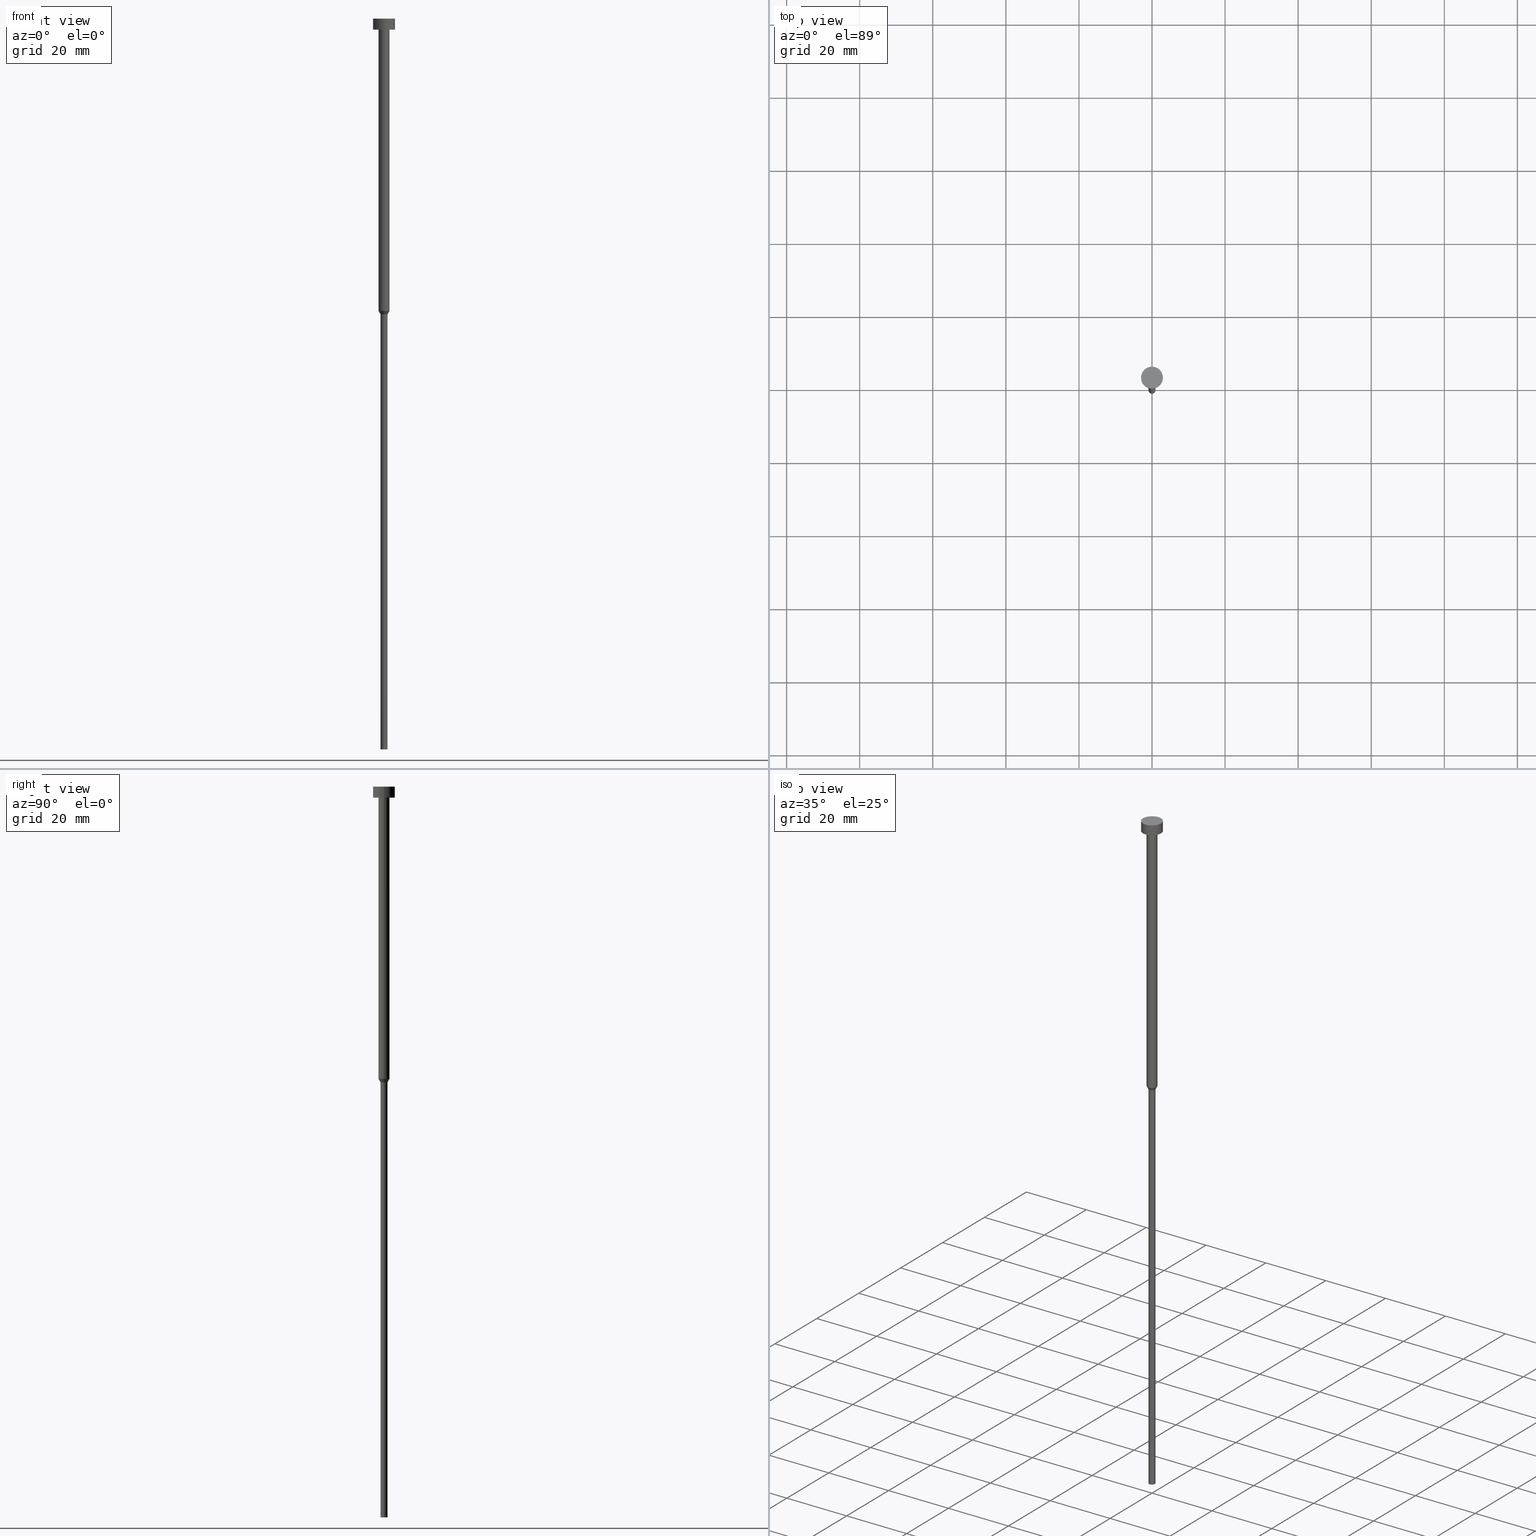
[diagram: canonical four-view strip — front | top / right | iso, engineering-drawing reading convention]
A machine part, canonical four-view strip (front | top / right | iso — engineering-drawing reading convention). The complete STEP part file that produces these views, byte-faithful:
ISO-10303-21;
HEADER;
FILE_DESCRIPTION (( 'STEP AP203' ),
    '1' );
FILE_NAME ('4db2.STEP',
    '2023-02-13T09:03:46',
    ( '' ),
    ( '' ),
    'SwSTEP 2.0',
    'SolidWorks 2019',
    '' );
FILE_SCHEMA (( 'CONFIG_CONTROL_DESIGN' ));
ENDSEC;

DATA;
#1 = EDGE_CURVE ( 'NONE', #82, #149, #207, .T. ) ;
#2 = DIRECTION ( 'NONE',  ( -0.000000000000000000, -0.000000000000000000, 1.000000000000000000 ) ) ;
#3 = VERTEX_POINT ( 'NONE', #14 ) ;
#4 = UNCERTAINTY_MEASURE_WITH_UNIT (LENGTH_MEASURE( 1.000000000000000082E-05 ), #194, 'distance_accuracy_value', 'NONE');
#5 = DIRECTION ( 'NONE',  ( -0.000000000000000000, -0.000000000000000000, 1.000000000000000000 ) ) ;
#6 = SECURITY_CLASSIFICATION ( '', '', #232 ) ;
#7 = ORIENTED_EDGE ( 'NONE', *, *, #49, .T. ) ;
#8 = CC_DESIGN_DATE_AND_TIME_ASSIGNMENT ( #201, #43, ( #6 ) ) ;
#9 = EDGE_LOOP ( 'NONE', ( #228, #233 ) ) ;
#10 = DIRECTION ( 'NONE',  ( -0.000000000000000000, -0.000000000000000000, 1.000000000000000000 ) ) ;
#11 = ORIENTED_EDGE ( 'NONE', *, *, #190, .T. ) ;
#12 = CARTESIAN_POINT ( 'NONE',  ( 0.000000000000000000, 0.000000000000000000, -200.0000000000000000 ) ) ;
#13 = EDGE_CURVE ( 'NONE', #196, #27, #108, .T. ) ;
#14 = CARTESIAN_POINT ( 'NONE',  ( -3.000000000000000000, 3.673940397442059868E-16, -3.673940397442059868E-16 ) ) ;
#15 = DATE_AND_TIME ( #182, #297 ) ;
#16 = CARTESIAN_POINT ( 'NONE',  ( 0.000000000000000000, 0.000000000000000000, -200.0000000000000000 ) ) ;
#17 = FACE_OUTER_BOUND ( 'NONE', #58, .T. ) ;
#18 = CALENDAR_DATE ( 2023, 13, 2 ) ;
#19 = ADVANCED_BREP_SHAPE_REPRESENTATION ( '4db2', ( #235, #314 ), #72 ) ;
#20 = CARTESIAN_POINT ( 'NONE',  ( -0.9500000000000001776, 1.163414459189985929E-16, -80.95262794416288443 ) ) ;
#21 = DIRECTION ( 'NONE',  ( -0.000000000000000000, -0.000000000000000000, 1.000000000000000000 ) ) ;
#22 = AXIS2_PLACEMENT_3D ( 'NONE', #256, #195, #249 ) ;
#23 = AXIS2_PLACEMENT_3D ( 'NONE', #110, #216, #54 ) ;
#24 = LINE ( 'NONE', #245, #55 ) ;
#25 = EDGE_CURVE ( 'NONE', #95, #85, #219, .T. ) ;
#26 = CYLINDRICAL_SURFACE ( 'NONE', #134, 3.000000000000000000 ) ;
#27 = VERTEX_POINT ( 'NONE', #278 ) ;
#28 = CYLINDRICAL_SURFACE ( 'NONE', #23, 1.500000000000000000 ) ;
#29 = AXIS2_PLACEMENT_3D ( 'NONE', #305, #223, #86 ) ;
#30 = EDGE_LOOP ( 'NONE', ( #151, #120, #11, #143 ) ) ;
#31 = PERSON_AND_ORGANIZATION ( #312, #176 ) ;
#32 = EDGE_LOOP ( 'NONE', ( #61, #7, #307, #313 ) ) ;
#33 = LINE ( 'NONE', #146, #265 ) ;
#34 = DIRECTION ( 'NONE',  ( -0.000000000000000000, -0.000000000000000000, 1.000000000000000000 ) ) ;
#35 = ORIENTED_EDGE ( 'NONE', *, *, #1, .F. ) ;
#36 = APPLICATION_CONTEXT ( 'configuration controlled 3d designs of mechanical parts and assemblies' ) ;
#37 = EDGE_LOOP ( 'NONE', ( #174, #277 ) ) ;
#38 = LOCAL_TIME ( 10, 3, 46.00000000000000000, #205 ) ;
#39 = EDGE_CURVE ( 'NONE', #149, #3, #33, .T. ) ;
#40 = ORIENTED_EDGE ( 'NONE', *, *, #25, .T. ) ;
#41 = CALENDAR_DATE ( 2023, 13, 2 ) ;
#42 = EDGE_CURVE ( 'NONE', #196, #355, #116, .T. ) ;
#43 = DATE_TIME_ROLE ( 'classification_date' ) ;
#44 = CARTESIAN_POINT ( 'NONE',  ( 3.000000000000000000, 0.000000000000000000, -3.000000000000000888 ) ) ;
#45 = FACE_BOUND ( 'NONE', #189, .T. ) ;
#46 = PERSON_AND_ORGANIZATION_ROLE ( 'design_supplier' ) ;
#47 = CARTESIAN_POINT ( 'NONE',  ( -0.9499999999999999556, 1.163414459189985682E-16, 0.000000000000000000 ) ) ;
#48 = AXIS2_PLACEMENT_3D ( 'NONE', #338, #118, #63 ) ;
#49 = EDGE_CURVE ( 'NONE', #149, #82, #200, .T. ) ;
#50 = LOCAL_TIME ( 10, 3, 46.00000000000000000, #103 ) ;
#51 = DIRECTION ( 'NONE',  ( 1.000000000000000000, 0.000000000000000000, 0.000000000000000000 ) ) ;
#52 = CARTESIAN_POINT ( 'NONE',  ( 0.000000000000000000, 0.000000000000000000, -1.836970198721029934E-16 ) ) ;
#53 = CC_DESIGN_PERSON_AND_ORGANIZATION_ASSIGNMENT ( #129, #210, ( #131 ) ) ;
#54 = DIRECTION ( 'NONE',  ( 1.000000000000000000, 0.000000000000000000, 0.000000000000000000 ) ) ;
#55 = VECTOR ( 'NONE', #218, 1000.000000000000000 ) ;
#56 = CARTESIAN_POINT ( 'NONE',  ( 0.000000000000000000, 0.000000000000000000, 0.000000000000000000 ) ) ;
#57 = ORIENTED_EDGE ( 'NONE', *, *, #323, .F. ) ;
#58 = EDGE_LOOP ( 'NONE', ( #35, #199 ) ) ;
#59 = VECTOR ( 'NONE', #264, 1000.000000000000000 ) ;
#60 = ORIENTED_EDGE ( 'NONE', *, *, #257, .T. ) ;
#61 = ORIENTED_EDGE ( 'NONE', *, *, #39, .F. ) ;
#62 = FACE_OUTER_BOUND ( 'NONE', #98, .T. ) ;
#63 = DIRECTION ( 'NONE',  ( 1.000000000000000000, 0.000000000000000000, 0.000000000000000000 ) ) ;
#64 = ORIENTED_EDGE ( 'NONE', *, *, #39, .T. ) ;
#65 = AXIS2_PLACEMENT_3D ( 'NONE', #16, #154, #261 ) ;
#66 = APPROVAL_ROLE ( '' ) ;
#67 = CARTESIAN_POINT ( 'NONE',  ( 0.9500000000000000666, 0.000000000000000000, -80.95262794416288443 ) ) ;
#68 = SHAPE_DEFINITION_REPRESENTATION ( #198, #19 ) ;
#69 = DIRECTION ( 'NONE',  ( -0.000000000000000000, -0.000000000000000000, 1.000000000000000000 ) ) ;
#70 = COORDINATED_UNIVERSAL_TIME_OFFSET ( 1, 0, .AHEAD. ) ;
#71 = CARTESIAN_POINT ( 'NONE',  ( 0.000000000000000000, 0.000000000000000000, -3.673940397442059868E-16 ) ) ;
#72 =( GEOMETRIC_REPRESENTATION_CONTEXT ( 3 ) GLOBAL_UNCERTAINTY_ASSIGNED_CONTEXT ( ( #4 ) ) GLOBAL_UNIT_ASSIGNED_CONTEXT ( ( #194, #230, #147 ) ) REPRESENTATION_CONTEXT ( 'NONE', 'WORKASPACE' ) );
#73 = APPROVAL_STATUS ( 'not_yet_approved' ) ;
#74 = APPROVAL_DATE_TIME ( #259, #187 ) ;
#75 = CC_DESIGN_PERSON_AND_ORGANIZATION_ASSIGNMENT ( #31, #258, ( #188 ) ) ;
#76 = DIRECTION ( 'NONE',  ( -0.000000000000000000, -0.000000000000000000, 1.000000000000000000 ) ) ;
#77 = DIRECTION ( 'NONE',  ( 1.000000000000000000, 0.000000000000000000, 0.000000000000000000 ) ) ;
#78 = CLOSED_SHELL ( 'NONE', ( #327, #303, #344, #279, #80, #229, #87, #293, #171, #268, #274 ) ) ;
#79 = DIRECTION ( 'NONE',  ( 1.000000000000000000, 0.000000000000000000, 0.000000000000000000 ) ) ;
#80 = ADVANCED_FACE ( 'NONE', ( #282 ), #254, .T. ) ;
#81 = CYLINDRICAL_SURFACE ( 'NONE', #266, 0.9499999999999999556 ) ;
#82 = VERTEX_POINT ( 'NONE', #44 ) ;
#83 = LOCAL_TIME ( 10, 3, 46.00000000000000000, #202 ) ;
#84 = CYLINDRICAL_SURFACE ( 'NONE', #247, 1.500000000000000000 ) ;
#85 = VERTEX_POINT ( 'NONE', #20 ) ;
#86 = DIRECTION ( 'NONE',  ( 1.000000000000000000, 0.000000000000000000, 0.000000000000000000 ) ) ;
#87 = ADVANCED_FACE ( 'NONE', ( #316 ), #89, .T. ) ;
#88 = ORIENTED_EDGE ( 'NONE', *, *, #212, .T. ) ;
#89 = CONICAL_SURFACE ( 'NONE', #296, 1.500000000000000000, 0.5235987755982980385 ) ;
#90 = CARTESIAN_POINT ( 'NONE',  ( 0.000000000000000000, 0.000000000000000000, -80.00000000000000000 ) ) ;
#91 = CIRCLE ( 'NONE', #29, 3.000000000000000000 ) ;
#92 = ORIENTED_EDGE ( 'NONE', *, *, #1, .T. ) ;
#93 = CARTESIAN_POINT ( 'NONE',  ( 0.000000000000000000, 0.000000000000000000, 0.000000000000000000 ) ) ;
#94 = ORIENTED_EDGE ( 'NONE', *, *, #299, .F. ) ;
#95 = VERTEX_POINT ( 'NONE', #67 ) ;
#96 = AXIS2_PLACEMENT_3D ( 'NONE', #12, #231, #294 ) ;
#97 = PERSON_AND_ORGANIZATION ( #312, #176 ) ;
#98 = EDGE_LOOP ( 'NONE', ( #40, #115, #163, #342 ) ) ;
#99 = AXIS2_PLACEMENT_3D ( 'NONE', #93, #281, #255 ) ;
#100 = PERSON_AND_ORGANIZATION_ROLE ( 'classification_officer' ) ;
#101 = PLANE ( 'NONE',  #290 ) ;
#102 = DIRECTION ( 'NONE',  ( 0.4999999999999992784, 0.000000000000000000, 0.8660254037844390407 ) ) ;
#103 = COORDINATED_UNIVERSAL_TIME_OFFSET ( 1, 0, .AHEAD. ) ;
#104 = CARTESIAN_POINT ( 'NONE',  ( 0.9499999999999998446, 0.000000000000000000, -200.0000000000000000 ) ) ;
#105 = EDGE_CURVE ( 'NONE', #85, #196, #206, .T. ) ;
#106 = DIRECTION ( 'NONE',  ( 0.000000000000000000, 0.000000000000000000, -1.000000000000000000 ) ) ;
#107 = CARTESIAN_POINT ( 'NONE',  ( 0.000000000000000000, 0.000000000000000000, -80.00000000000000000 ) ) ;
#108 = CIRCLE ( 'NONE', #252, 1.500000000000000000 ) ;
#109 = CIRCLE ( 'NONE', #260, 3.000000000000000000 ) ;
#110 = CARTESIAN_POINT ( 'NONE',  ( 0.000000000000000000, 0.000000000000000000, 0.000000000000000000 ) ) ;
#111 = CARTESIAN_POINT ( 'NONE',  ( 0.000000000000000000, 0.000000000000000000, 0.000000000000000000 ) ) ;
#112 = ORIENTED_EDGE ( 'NONE', *, *, #234, .T. ) ;
#113 = ORIENTED_EDGE ( 'NONE', *, *, #152, .F. ) ;
#114 = EDGE_CURVE ( 'NONE', #82, #304, #287, .T. ) ;
#115 = ORIENTED_EDGE ( 'NONE', *, *, #105, .T. ) ;
#116 = LINE ( 'NONE', #175, #159 ) ;
#117 = CIRCLE ( 'NONE', #238, 0.9499999999999998446 ) ;
#118 = DIRECTION ( 'NONE',  ( -0.000000000000000000, -0.000000000000000000, 1.000000000000000000 ) ) ;
#119 = DIRECTION ( 'NONE',  ( 1.000000000000000000, 0.000000000000000000, 0.000000000000000000 ) ) ;
#120 = ORIENTED_EDGE ( 'NONE', *, *, #178, .T. ) ;
#121 = APPROVAL_DATE_TIME ( #348, #138 ) ;
#122 = CARTESIAN_POINT ( 'NONE',  ( 0.000000000000000000, 0.000000000000000000, -80.00000000000000000 ) ) ;
#123 = AXIS2_PLACEMENT_3D ( 'NONE', #239, #125, #237 ) ;
#124 = APPROVAL_DATE_TIME ( #15, #204 ) ;
#125 = DIRECTION ( 'NONE',  ( -0.000000000000000000, -0.000000000000000000, 1.000000000000000000 ) ) ;
#126 = APPROVAL_PERSON_ORGANIZATION ( #97, #204, #153 ) ;
#127 = APPLICATION_PROTOCOL_DEFINITION ( 'international standard', 'config_control_design', 1994, #36 ) ;
#128 = LINE ( 'NONE', #158, #352 ) ;
#129 = PERSON_AND_ORGANIZATION ( #312, #176 ) ;
#130 = LINE ( 'NONE', #47, #59 ) ;
#131 = PRODUCT_DEFINITION ( 'NEZN�M�', '', #283, #136 ) ;
#132 = CYLINDRICAL_SURFACE ( 'NONE', #308, 0.9499999999999999556 ) ;
#133 = APPROVAL_PERSON_ORGANIZATION ( #325, #187, #66 ) ;
#134 = AXIS2_PLACEMENT_3D ( 'NONE', #56, #271, #213 ) ;
#135 = PLANE ( 'NONE',  #253 ) ;
#136 = DESIGN_CONTEXT ( 'detailed design', #36, 'design' ) ;
#137 = EDGE_LOOP ( 'NONE', ( #139, #60, #170, #285 ) ) ;
#138 = APPROVAL ( #350, 'NEUR�EN�' ) ;
#139 = ORIENTED_EDGE ( 'NONE', *, *, #212, .F. ) ;
#140 = AXIS2_PLACEMENT_3D ( 'NONE', #337, #311, #173 ) ;
#141 = CC_DESIGN_APPROVAL ( #204, ( #6 ) ) ;
#142 = CARTESIAN_POINT ( 'NONE',  ( -1.500000000000000000, 1.836970198721029934E-16, -3.000000000000000888 ) ) ;
#143 = ORIENTED_EDGE ( 'NONE', *, *, #13, .F. ) ;
#144 = LINE ( 'NONE', #341, #220 ) ;
#145 = CC_DESIGN_PERSON_AND_ORGANIZATION_ASSIGNMENT ( #288, #183, ( #283 ) ) ;
#146 = CARTESIAN_POINT ( 'NONE',  ( -3.000000000000000000, 3.673940397442059868E-16, 0.000000000000000000 ) ) ;
#147 =( NAMED_UNIT ( * ) SI_UNIT ( $, .STERADIAN. ) SOLID_ANGLE_UNIT ( ) );
#148 = ORIENTED_EDGE ( 'NONE', *, *, #234, .F. ) ;
#149 = VERTEX_POINT ( 'NONE', #291 ) ;
#150 = DIRECTION ( 'NONE',  ( 1.000000000000000000, 0.000000000000000000, 0.000000000000000000 ) ) ;
#151 = ORIENTED_EDGE ( 'NONE', *, *, #105, .F. ) ;
#152 = EDGE_CURVE ( 'NONE', #355, #165, #276, .T. ) ;
#153 = APPROVAL_ROLE ( '' ) ;
#154 = DIRECTION ( 'NONE',  ( -0.000000000000000000, -0.000000000000000000, 1.000000000000000000 ) ) ;
#155 = CIRCLE ( 'NONE', #340, 1.500000000000000000 ) ;
#156 = EDGE_CURVE ( 'NONE', #166, #250, #328, .T. ) ;
#157 = DIRECTION ( 'NONE',  ( 1.000000000000000000, 0.000000000000000000, 0.000000000000000000 ) ) ;
#158 = CARTESIAN_POINT ( 'NONE',  ( 1.500000000000000000, 0.000000000000000000, -80.00000000000000000 ) ) ;
#159 = VECTOR ( 'NONE', #226, 1000.000000000000000 ) ;
#160 = CARTESIAN_POINT ( 'NONE',  ( 0.000000000000000000, -3.000000000000000000, -3.000000000000000888 ) ) ;
#161 = LOCAL_TIME ( 10, 3, 46.00000000000000000, #70 ) ;
#162 = CARTESIAN_POINT ( 'NONE',  ( 0.000000000000000000, 0.000000000000000000, 0.000000000000000000 ) ) ;
#163 = ORIENTED_EDGE ( 'NONE', *, *, #240, .F. ) ;
#164 = DIRECTION ( 'NONE',  ( -0.000000000000000000, -0.000000000000000000, 1.000000000000000000 ) ) ;
#165 = VERTEX_POINT ( 'NONE', #349 ) ;
#166 = VERTEX_POINT ( 'NONE', #104 ) ;
#167 = CC_DESIGN_APPROVAL ( #138, ( #131 ) ) ;
#168 = ORIENTED_EDGE ( 'NONE', *, *, #299, .T. ) ;
#169 = FACE_OUTER_BOUND ( 'NONE', #333, .T. ) ;
#170 = ORIENTED_EDGE ( 'NONE', *, *, #323, .T. ) ;
#171 = ADVANCED_FACE ( 'NONE', ( #45, #17 ), #101, .T. ) ;
#172 = AXIS2_PLACEMENT_3D ( 'NONE', #90, #34, #119 ) ;
#173 = DIRECTION ( 'NONE',  ( 1.000000000000000000, 0.000000000000000000, 0.000000000000000000 ) ) ;
#174 = ORIENTED_EDGE ( 'NONE', *, *, #156, .F. ) ;
#175 = CARTESIAN_POINT ( 'NONE',  ( -1.500000000000000000, 1.836970198721029934E-16, 0.000000000000000000 ) ) ;
#176 = ORGANIZATION ( 'NEUR�EN�', 'NEUR�EN�', '' ) ;
#177 = ORIENTED_EDGE ( 'NONE', *, *, #317, .F. ) ;
#178 = EDGE_CURVE ( 'NONE', #85, #95, #209, .T. ) ;
#179 = DIRECTION ( 'NONE',  ( 1.000000000000000000, 0.000000000000000000, 0.000000000000000000 ) ) ;
#180 = DIRECTION ( 'NONE',  ( -0.000000000000000000, -0.000000000000000000, 1.000000000000000000 ) ) ;
#181 = AXIS2_PLACEMENT_3D ( 'NONE', #329, #164, #269 ) ;
#182 = CALENDAR_DATE ( 2023, 13, 2 ) ;
#183 = PERSON_AND_ORGANIZATION_ROLE ( 'creator' ) ;
#184 = DIRECTION ( 'NONE',  ( 1.000000000000000000, 0.000000000000000000, 0.000000000000000000 ) ) ;
#185 = VECTOR ( 'NONE', #241, 1000.000000000000000 ) ;
#186 = DIRECTION ( 'NONE',  ( 1.000000000000000000, 0.000000000000000000, 0.000000000000000000 ) ) ;
#187 = APPROVAL ( #320, 'NEUR�EN�' ) ;
#188 = PRODUCT ( '4db2', '4db2', '', ( #336 ) ) ;
#189 = EDGE_LOOP ( 'NONE', ( #168, #244 ) ) ;
#190 = EDGE_CURVE ( 'NONE', #95, #27, #128, .T. ) ;
#191 = DIRECTION ( 'NONE',  ( 0.000000000000000000, -0.000000000000000000, 1.000000000000000000 ) ) ;
#192 = DIRECTION ( 'NONE',  ( -0.000000000000000000, -0.000000000000000000, 1.000000000000000000 ) ) ;
#193 = ORIENTED_EDGE ( 'NONE', *, *, #25, .F. ) ;
#194 =( LENGTH_UNIT ( ) NAMED_UNIT ( * ) SI_UNIT ( .MILLI., .METRE. ) );
#195 = DIRECTION ( 'NONE',  ( -0.000000000000000000, -0.000000000000000000, 1.000000000000000000 ) ) ;
#196 = VERTEX_POINT ( 'NONE', #321 ) ;
#197 = EDGE_CURVE ( 'NONE', #3, #304, #109, .T. ) ;
#198 = PRODUCT_DEFINITION_SHAPE ( 'NONE', 'NONE',  #131 ) ;
#199 = ORIENTED_EDGE ( 'NONE', *, *, #49, .F. ) ;
#200 = CIRCLE ( 'NONE', #48, 3.000000000000000000 ) ;
#201 = DATE_AND_TIME ( #324, #50 ) ;
#202 = COORDINATED_UNIVERSAL_TIME_OFFSET ( 1, 0, .AHEAD. ) ;
#203 = DIRECTION ( 'NONE',  ( -0.000000000000000000, -0.000000000000000000, 1.000000000000000000 ) ) ;
#204 = APPROVAL ( #73, 'NEUR�EN�' ) ;
#205 = COORDINATED_UNIVERSAL_TIME_OFFSET ( 1, 0, .AHEAD. ) ;
#206 = LINE ( 'NONE', #326, #185 ) ;
#207 = CIRCLE ( 'NONE', #22, 3.000000000000000000 ) ;
#208 = PERSON_AND_ORGANIZATION ( #312, #176 ) ;
#209 = CIRCLE ( 'NONE', #215, 0.9500000000000000666 ) ;
#210 = PERSON_AND_ORGANIZATION_ROLE ( 'creator' ) ;
#211 = CARTESIAN_POINT ( 'NONE',  ( 0.000000000000000000, 0.000000000000000000, 0.000000000000000000 ) ) ;
#212 = EDGE_CURVE ( 'NONE', #250, #85, #130, .T. ) ;
#213 = DIRECTION ( 'NONE',  ( 1.000000000000000000, 0.000000000000000000, 0.000000000000000000 ) ) ;
#214 = DIRECTION ( 'NONE',  ( 1.000000000000000000, 0.000000000000000000, 0.000000000000000000 ) ) ;
#215 = AXIS2_PLACEMENT_3D ( 'NONE', #295, #203, #319 ) ;
#216 = DIRECTION ( 'NONE',  ( -0.000000000000000000, -0.000000000000000000, 1.000000000000000000 ) ) ;
#217 = ORIENTED_EDGE ( 'NONE', *, *, #42, .F. ) ;
#218 = DIRECTION ( 'NONE',  ( -0.000000000000000000, -0.000000000000000000, 1.000000000000000000 ) ) ;
#219 = CIRCLE ( 'NONE', #140, 0.9500000000000000666 ) ;
#220 = VECTOR ( 'NONE', #192, 1000.000000000000000 ) ;
#221 = PRODUCT_RELATED_PRODUCT_CATEGORY ( 'detail', '', ( #188 ) ) ;
#222 = ORIENTED_EDGE ( 'NONE', *, *, #42, .T. ) ;
#223 = DIRECTION ( 'NONE',  ( -0.000000000000000000, -0.000000000000000000, 1.000000000000000000 ) ) ;
#224 = DIRECTION ( 'NONE',  ( -0.000000000000000000, -0.000000000000000000, 1.000000000000000000 ) ) ;
#225 = DIRECTION ( 'NONE',  ( 0.000000000000000000, 0.000000000000000000, 1.000000000000000000 ) ) ;
#226 = DIRECTION ( 'NONE',  ( -0.000000000000000000, -0.000000000000000000, 1.000000000000000000 ) ) ;
#227 = CONICAL_SURFACE ( 'NONE', #172, 1.500000000000000000, 0.5235987755982980385 ) ;
#228 = ORIENTED_EDGE ( 'NONE', *, *, #317, .T. ) ;
#229 = ADVANCED_FACE ( 'NONE', ( #263 ), #132, .T. ) ;
#230 =( NAMED_UNIT ( * ) PLANE_ANGLE_UNIT ( ) SI_UNIT ( $, .RADIAN. ) );
#231 = DIRECTION ( 'NONE',  ( 0.000000000000000000, 0.000000000000000000, -1.000000000000000000 ) ) ;
#232 = SECURITY_CLASSIFICATION_LEVEL ( 'unclassified' ) ;
#233 = ORIENTED_EDGE ( 'NONE', *, *, #197, .T. ) ;
#234 = EDGE_CURVE ( 'NONE', #27, #165, #24, .T. ) ;
#235 = MANIFOLD_SOLID_BREP ( 'Rotovat1', #78 ) ;
#236 = DATE_TIME_ROLE ( 'creation_date' ) ;
#237 = DIRECTION ( 'NONE',  ( 1.000000000000000000, 0.000000000000000000, 0.000000000000000000 ) ) ;
#238 = AXIS2_PLACEMENT_3D ( 'NONE', #302, #5, #79 ) ;
#239 = CARTESIAN_POINT ( 'NONE',  ( 0.000000000000000000, 0.000000000000000000, -3.000000000000000888 ) ) ;
#240 = EDGE_CURVE ( 'NONE', #27, #196, #155, .T. ) ;
#241 = DIRECTION ( 'NONE',  ( -0.4999999999999992784, 6.123233995736757408E-17, 0.8660254037844390407 ) ) ;
#242 = CARTESIAN_POINT ( 'NONE',  ( 3.000000000000000000, 0.000000000000000000, -3.673940397442059868E-16 ) ) ;
#243 = FACE_OUTER_BOUND ( 'NONE', #9, .T. ) ;
#244 = ORIENTED_EDGE ( 'NONE', *, *, #152, .T. ) ;
#245 = CARTESIAN_POINT ( 'NONE',  ( 1.500000000000000000, 0.000000000000000000, 0.000000000000000000 ) ) ;
#246 = EDGE_LOOP ( 'NONE', ( #251, #88, #193, #57 ) ) ;
#247 = AXIS2_PLACEMENT_3D ( 'NONE', #162, #267, #214 ) ;
#248 = CC_DESIGN_DATE_AND_TIME_ASSIGNMENT ( #315, #236, ( #131 ) ) ;
#249 = DIRECTION ( 'NONE',  ( 1.000000000000000000, 0.000000000000000000, 0.000000000000000000 ) ) ;
#250 = VERTEX_POINT ( 'NONE', #300 ) ;
#251 = ORIENTED_EDGE ( 'NONE', *, *, #156, .T. ) ;
#252 = AXIS2_PLACEMENT_3D ( 'NONE', #122, #224, #309 ) ;
#253 = AXIS2_PLACEMENT_3D ( 'NONE', #52, #191, #77 ) ;
#254 = PLANE ( 'NONE',  #96 ) ;
#255 = DIRECTION ( 'NONE',  ( 1.000000000000000000, 0.000000000000000000, 0.000000000000000000 ) ) ;
#256 = CARTESIAN_POINT ( 'NONE',  ( 0.000000000000000000, 0.000000000000000000, -3.000000000000000888 ) ) ;
#257 = EDGE_CURVE ( 'NONE', #250, #166, #117, .T. ) ;
#258 = PERSON_AND_ORGANIZATION_ROLE ( 'design_owner' ) ;
#259 = DATE_AND_TIME ( #41, #161 ) ;
#260 = AXIS2_PLACEMENT_3D ( 'NONE', #71, #180, #157 ) ;
#261 = DIRECTION ( 'NONE',  ( 1.000000000000000000, 0.000000000000000000, 0.000000000000000000 ) ) ;
#262 = APPROVAL_ROLE ( '' ) ;
#263 = FACE_OUTER_BOUND ( 'NONE', #137, .T. ) ;
#264 = DIRECTION ( 'NONE',  ( -0.000000000000000000, -0.000000000000000000, 1.000000000000000000 ) ) ;
#265 = VECTOR ( 'NONE', #10, 1000.000000000000000 ) ;
#266 = AXIS2_PLACEMENT_3D ( 'NONE', #111, #2, #51 ) ;
#267 = DIRECTION ( 'NONE',  ( -0.000000000000000000, -0.000000000000000000, 1.000000000000000000 ) ) ;
#268 = ADVANCED_FACE ( 'NONE', ( #332 ), #26, .T. ) ;
#269 = DIRECTION ( 'NONE',  ( 1.000000000000000000, 0.000000000000000000, 0.000000000000000000 ) ) ;
#270 = EDGE_LOOP ( 'NONE', ( #217, #301, #112, #113 ) ) ;
#271 = DIRECTION ( 'NONE',  ( -0.000000000000000000, -0.000000000000000000, 1.000000000000000000 ) ) ;
#272 = FACE_OUTER_BOUND ( 'NONE', #270, .T. ) ;
#273 = FACE_OUTER_BOUND ( 'NONE', #246, .T. ) ;
#274 = ADVANCED_FACE ( 'NONE', ( #243 ), #135, .T. ) ;
#275 = APPLICATION_PROTOCOL_DEFINITION ( 'international standard', 'config_control_design', 1994, #330 ) ;
#276 = CIRCLE ( 'NONE', #123, 1.500000000000000000 ) ;
#277 = ORIENTED_EDGE ( 'NONE', *, *, #257, .F. ) ;
#278 = CARTESIAN_POINT ( 'NONE',  ( 1.500000000000000000, 0.000000000000000000, -80.00000000000000000 ) ) ;
#279 = ADVANCED_FACE ( 'NONE', ( #273 ), #81, .T. ) ;
#280 = EDGE_LOOP ( 'NONE', ( #345, #222, #94, #148 ) ) ;
#281 = DIRECTION ( 'NONE',  ( -0.000000000000000000, -0.000000000000000000, 1.000000000000000000 ) ) ;
#282 = FACE_OUTER_BOUND ( 'NONE', #37, .T. ) ;
#283 = PRODUCT_DEFINITION_FORMATION_WITH_SPECIFIED_SOURCE ( 'LIBOVOLN�', '', #188, .NOT_KNOWN. ) ;
#284 = CARTESIAN_POINT ( 'NONE',  ( 0.000000000000000000, 0.000000000000000000, 0.000000000000000000 ) ) ;
#285 = ORIENTED_EDGE ( 'NONE', *, *, #178, .F. ) ;
#286 = CC_DESIGN_PERSON_AND_ORGANIZATION_ASSIGNMENT ( #208, #46, ( #283 ) ) ;
#287 = LINE ( 'NONE', #289, #346 ) ;
#288 = PERSON_AND_ORGANIZATION ( #312, #176 ) ;
#289 = CARTESIAN_POINT ( 'NONE',  ( 3.000000000000000000, 0.000000000000000000, 0.000000000000000000 ) ) ;
#290 = AXIS2_PLACEMENT_3D ( 'NONE', #160, #106, #353 ) ;
#291 = CARTESIAN_POINT ( 'NONE',  ( -3.000000000000000000, 3.673940397442059868E-16, -3.000000000000000888 ) ) ;
#292 = CALENDAR_DATE ( 2023, 13, 2 ) ;
#293 = ADVANCED_FACE ( 'NONE', ( #272 ), #84, .T. ) ;
#294 = DIRECTION ( 'NONE',  ( -1.000000000000000000, 0.000000000000000000, -0.000000000000000000 ) ) ;
#295 = CARTESIAN_POINT ( 'NONE',  ( 0.000000000000000000, 0.000000000000000000, -80.95262794416288443 ) ) ;
#296 = AXIS2_PLACEMENT_3D ( 'NONE', #107, #69, #179 ) ;
#297 = LOCAL_TIME ( 10, 3, 46.00000000000000000, #318 ) ;
#298 = CARTESIAN_POINT ( 'NONE',  ( 0.000000000000000000, 0.000000000000000000, -80.00000000000000000 ) ) ;
#299 = EDGE_CURVE ( 'NONE', #165, #355, #339, .T. ) ;
#300 = CARTESIAN_POINT ( 'NONE',  ( -0.9499999999999998446, 1.163414459189985682E-16, -200.0000000000000000 ) ) ;
#301 = ORIENTED_EDGE ( 'NONE', *, *, #13, .T. ) ;
#302 = CARTESIAN_POINT ( 'NONE',  ( 0.000000000000000000, 0.000000000000000000, -200.0000000000000000 ) ) ;
#303 = ADVANCED_FACE ( 'NONE', ( #331 ), #28, .T. ) ;
#304 = VERTEX_POINT ( 'NONE', #242 ) ;
#305 = CARTESIAN_POINT ( 'NONE',  ( 0.000000000000000000, 0.000000000000000000, -3.673940397442059868E-16 ) ) ;
#306 = ORIENTED_EDGE ( 'NONE', *, *, #114, .F. ) ;
#307 = ORIENTED_EDGE ( 'NONE', *, *, #114, .T. ) ;
#308 = AXIS2_PLACEMENT_3D ( 'NONE', #211, #76, #184 ) ;
#309 = DIRECTION ( 'NONE',  ( 1.000000000000000000, 0.000000000000000000, 0.000000000000000000 ) ) ;
#310 = CYLINDRICAL_SURFACE ( 'NONE', #99, 3.000000000000000000 ) ;
#311 = DIRECTION ( 'NONE',  ( -0.000000000000000000, -0.000000000000000000, 1.000000000000000000 ) ) ;
#312 = PERSON ( 'NEUR�EN�', 'NEUR�EN�', 'NEUR�EN�', ('NEUR�EN�'), ('NEUR�EN�'), ('NEUR�EN�') ) ;
#313 = ORIENTED_EDGE ( 'NONE', *, *, #197, .F. ) ;
#314 = AXIS2_PLACEMENT_3D ( 'NONE', #284, #225, #150 ) ;
#315 = DATE_AND_TIME ( #292, #83 ) ;
#316 = FACE_OUTER_BOUND ( 'NONE', #30, .T. ) ;
#317 = EDGE_CURVE ( 'NONE', #304, #3, #91, .T. ) ;
#318 = COORDINATED_UNIVERSAL_TIME_OFFSET ( 1, 0, .AHEAD. ) ;
#319 = DIRECTION ( 'NONE',  ( 1.000000000000000000, 0.000000000000000000, 0.000000000000000000 ) ) ;
#320 = APPROVAL_STATUS ( 'not_yet_approved' ) ;
#321 = CARTESIAN_POINT ( 'NONE',  ( -1.500000000000000000, 1.836970198721029934E-16, -80.00000000000000000 ) ) ;
#322 = APPROVAL_PERSON_ORGANIZATION ( #351, #138, #262 ) ;
#323 = EDGE_CURVE ( 'NONE', #166, #95, #144, .T. ) ;
#324 = CALENDAR_DATE ( 2023, 13, 2 ) ;
#325 = PERSON_AND_ORGANIZATION ( #312, #176 ) ;
#326 = CARTESIAN_POINT ( 'NONE',  ( -1.500000000000000000, 1.836970198721029934E-16, -80.00000000000000000 ) ) ;
#327 = ADVANCED_FACE ( 'NONE', ( #169 ), #310, .T. ) ;
#328 = CIRCLE ( 'NONE', #65, 0.9499999999999998446 ) ;
#329 = CARTESIAN_POINT ( 'NONE',  ( 0.000000000000000000, 0.000000000000000000, -3.000000000000000888 ) ) ;
#330 = APPLICATION_CONTEXT ( 'configuration controlled 3d designs of mechanical parts and assemblies' ) ;
#331 = FACE_OUTER_BOUND ( 'NONE', #280, .T. ) ;
#332 = FACE_OUTER_BOUND ( 'NONE', #32, .T. ) ;
#333 = EDGE_LOOP ( 'NONE', ( #92, #64, #177, #306 ) ) ;
#334 = CC_DESIGN_PERSON_AND_ORGANIZATION_ASSIGNMENT ( #343, #100, ( #6 ) ) ;
#335 = CC_DESIGN_APPROVAL ( #187, ( #283 ) ) ;
#336 = MECHANICAL_CONTEXT ( 'NONE', #330, 'mechanical' ) ;
#337 = CARTESIAN_POINT ( 'NONE',  ( 0.000000000000000000, 0.000000000000000000, -80.95262794416288443 ) ) ;
#338 = CARTESIAN_POINT ( 'NONE',  ( 0.000000000000000000, 0.000000000000000000, -3.000000000000000888 ) ) ;
#339 = CIRCLE ( 'NONE', #181, 1.500000000000000000 ) ;
#340 = AXIS2_PLACEMENT_3D ( 'NONE', #298, #354, #186 ) ;
#341 = CARTESIAN_POINT ( 'NONE',  ( 0.9499999999999999556, 0.000000000000000000, 0.000000000000000000 ) ) ;
#342 = ORIENTED_EDGE ( 'NONE', *, *, #190, .F. ) ;
#343 = PERSON_AND_ORGANIZATION ( #312, #176 ) ;
#344 = ADVANCED_FACE ( 'NONE', ( #62 ), #227, .T. ) ;
#345 = ORIENTED_EDGE ( 'NONE', *, *, #240, .T. ) ;
#346 = VECTOR ( 'NONE', #21, 1000.000000000000000 ) ;
#347 = CC_DESIGN_SECURITY_CLASSIFICATION ( #6, ( #283 ) ) ;
#348 = DATE_AND_TIME ( #18, #38 ) ;
#349 = CARTESIAN_POINT ( 'NONE',  ( 1.500000000000000000, 0.000000000000000000, -3.000000000000000888 ) ) ;
#350 = APPROVAL_STATUS ( 'not_yet_approved' ) ;
#351 = PERSON_AND_ORGANIZATION ( #312, #176 ) ;
#352 = VECTOR ( 'NONE', #102, 1000.000000000000000 ) ;
#353 = DIRECTION ( 'NONE',  ( -1.000000000000000000, 0.000000000000000000, -0.000000000000000000 ) ) ;
#354 = DIRECTION ( 'NONE',  ( -0.000000000000000000, -0.000000000000000000, 1.000000000000000000 ) ) ;
#355 = VERTEX_POINT ( 'NONE', #142 ) ;
ENDSEC;
END-ISO-10303-21;
